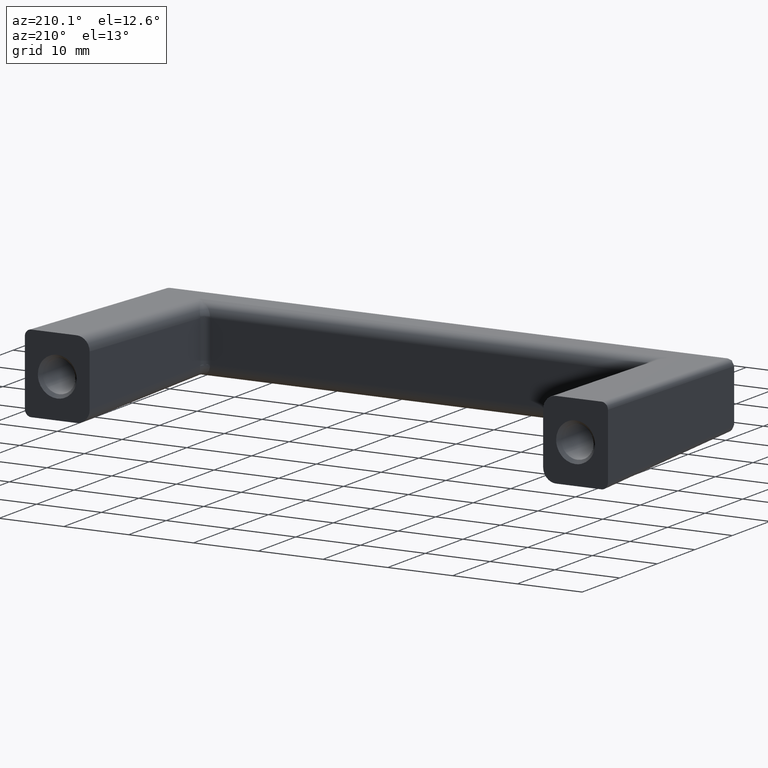
[diagram: clean part render]
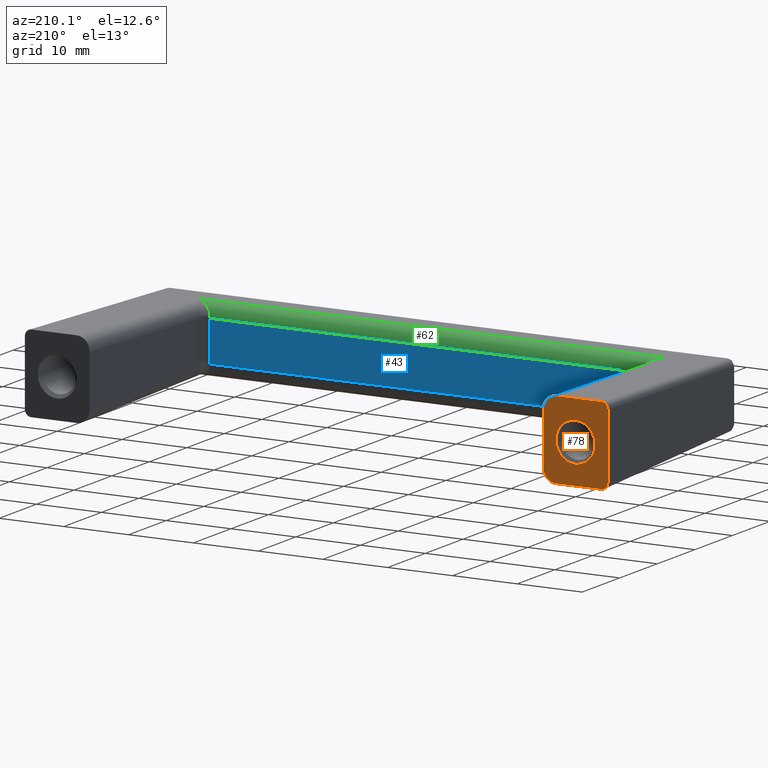
[diagram: same view with three faces highlighted in distinct colors, each labeled with its STEP entity id]
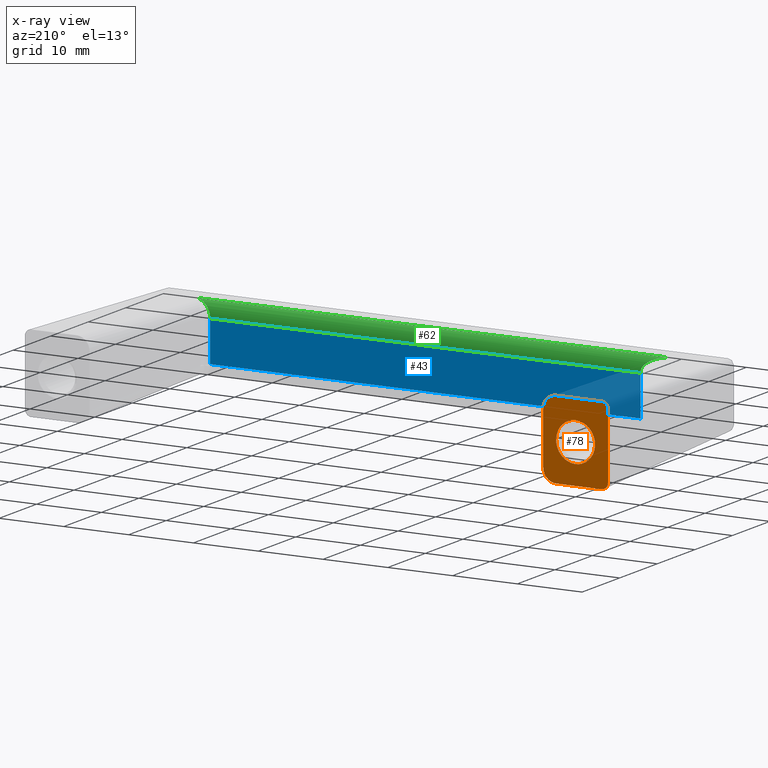
[diagram: x-ray of the same camera — body ghosted, the three highlighted faces saturated]
A machine part, auxiliary view with three faces highlighted in distinct colors.
The next image is the same camera in x-ray (body ghosted, the three faces saturated) — at least one of them is partly hidden behind the body in this view.
Their STEP definitions:

[orange] entity #78 — the highlighted planar face has unit normal (0, -1, 0).
#78=ADVANCED_FACE('',(#470,#471),#469,.F.);
#469=PLANE('',#964);
#470=FACE_OUTER_BOUND('',#965,.T.);
#471=FACE_BOUND('',#966,.T.);
#961=CARTESIAN_POINT('',(-4.60004150808E+001,0.00000000000E+000,-7.20014746024E+000));
#962=DIRECTION('',(0.00000000000E+000,-1.00000000000E+000,0.00000000000E+000));
#963=DIRECTION('',(1.00000000000E+000,0.00000000000E+000,0.00000000000E+000));
#964=AXIS2_PLACEMENT_3D('',#961,#962,#963);
#965=EDGE_LOOP('',(#1214,#1215,#1216,#1217,#1218,#1219,#1220,#1221));
#966=EDGE_LOOP('',(#1222,#1223,#1224,#1225,#1226,#1227,#1228,#1229));
#1214=ORIENTED_EDGE('',*,*,#1438,.F.);
#1215=ORIENTED_EDGE('',*,*,#1416,.T.);
#1216=ORIENTED_EDGE('',*,*,#1439,.T.);
#1217=ORIENTED_EDGE('',*,*,#1411,.T.);
#1218=ORIENTED_EDGE('',*,*,#1437,.T.);
#1219=ORIENTED_EDGE('',*,*,#1429,.T.);
#1220=ORIENTED_EDGE('',*,*,#1382,.F.);
#1221=ORIENTED_EDGE('',*,*,#1419,.T.);
#1222=ORIENTED_EDGE('',*,*,#1440,.T.);
#1223=ORIENTED_EDGE('',*,*,#1441,.T.);
#1224=ORIENTED_EDGE('',*,*,#1442,.T.);
#1225=ORIENTED_EDGE('',*,*,#1443,.T.);
#1226=ORIENTED_EDGE('',*,*,#1444,.T.);
#1227=ORIENTED_EDGE('',*,*,#1445,.T.);
#1228=ORIENTED_EDGE('',*,*,#1446,.T.);
#1229=ORIENTED_EDGE('',*,*,#1447,.T.);
#1382=EDGE_CURVE('',#1822,#1829,#1830,.T.);
#1411=EDGE_CURVE('',#2004,#2011,#2018,.T.);
#1416=EDGE_CURVE('',#2036,#2043,#2050,.T.);
#1419=EDGE_CURVE('',#1822,#2063,#2070,.T.);
#1429=EDGE_CURVE('',#2132,#1829,#2133,.T.);
#1437=EDGE_CURVE('',#2011,#2132,#2182,.T.);
#1438=EDGE_CURVE('',#2036,#2063,#2188,.T.);
#1439=EDGE_CURVE('',#2043,#2004,#2194,.T.);
#1440=EDGE_CURVE('',#2200,#2201,#2202,.T.);
#1441=EDGE_CURVE('',#2201,#2208,#2209,.T.);
#1442=EDGE_CURVE('',#2208,#2215,#2216,.T.);
#1443=EDGE_CURVE('',#2215,#2222,#2223,.T.);
#1444=EDGE_CURVE('',#2222,#2229,#2230,.T.);
#1445=EDGE_CURVE('',#2229,#2236,#2237,.T.);
#1446=EDGE_CURVE('',#2236,#2243,#2244,.T.);
#1447=EDGE_CURVE('',#2243,#2200,#2250,.T.);
#1822=VERTEX_POINT('',#2769);
#1829=VERTEX_POINT('',#2773);
#1830=LINE('',#2774,#2775);
#2004=VERTEX_POINT('',#3003);
#2011=VERTEX_POINT('',#3007);
#2018=(BOUNDED_CURVE() B_SPLINE_CURVE(3,(#3011,#3012,#3013,#3014,#3015,#3016,#3017,#3018,#3019),.UNSPECIFIED.,.F.,.F.) B_SPLINE_CURVE_WITH_KNOTS((4,1,1,1,1,1,4),(1.39798509000E-007,6.38861703249E-001,1.32689146219E+000,1.71998163015E+000,2.11314884337E+000,2.50630668852E+000,3.14516897243E+000),.UNSPECIFIED.) CURVE() GEOMETRIC_REPRESENTATION_ITEM() RATIONAL_B_SPLINE_CURVE((1.00000000000E+000,1.00000000000E+000,1.00000000000E+000,1.00000000000E+000,1.00000000000E+000,1.00000000000E+000,1.00000000000E+000,1.00000000000E+000,1.00000000000E+000)) REPRESENTATION_ITEM('') );
#2036=VERTEX_POINT('',#3026);
#2043=VERTEX_POINT('',#3030);
#2050=(BOUNDED_CURVE() B_SPLINE_CURVE(3,(#3034,#3035,#3036,#3037,#3038,#3039,#3040,#3041,#3042),.UNSPECIFIED.,.F.,.F.) B_SPLINE_CURVE_WITH_KNOTS((4,1,1,1,1,1,4),(1.39802594000E-007,5.40565105711E-001,1.22858372363E+000,1.71998163015E+000,2.11314884337E+000,2.40802275541E+000,3.14516897243E+000),.UNSPECIFIED.) CURVE() GEOMETRIC_REPRESENTATION_ITEM() RATIONAL_B_SPLINE_CURVE((1.00000000000E+000,1.00000000000E+000,1.00000000000E+000,1.00000000000E+000,1.00000000000E+000,1.00000000000E+000,1.00000000000E+000,1.00000000000E+000,1.00000000000E+000)) REPRESENTATION_ITEM('') );
#2063=VERTEX_POINT('',#3052);
#2070=(BOUNDED_CURVE() B_SPLINE_CURVE(3,(#3056,#3057,#3058,#3059,#3060,#3061,#3062),.UNSPECIFIED.,.F.,.F.) B_SPLINE_CURVE_WITH_KNOTS((4,1,1,1,4),(2.47293324000E-007,4.90723671717E-001,8.83262818728E-001,1.22680017350E+000,1.57029857239E+000),.UNSPECIFIED.) CURVE() GEOMETRIC_REPRESENTATION_ITEM() RATIONAL_B_SPLINE_CURVE((1.00000000000E+000,1.00000000000E+000,1.00000000000E+000,1.00000000000E+000,1.00000000000E+000,1.00000000000E+000,1.00000000000E+000)) REPRESENTATION_ITEM('') );
#2132=VERTEX_POINT('',#3131);
#2133=(BOUNDED_CURVE() B_SPLINE_CURVE(3,(#3132,#3133,#3134,#3135,#3136,#3137,#3138,#3139),.UNSPECIFIED.,.F.,.F.) B_SPLINE_CURVE_WITH_KNOTS((4,1,1,1,1,4),(2.47303114000E-007,3.68037627212E-001,6.13413120796E-001,9.07827256662E-001,1.27587283427E+000,1.57029857239E+000),.UNSPECIFIED.) CURVE() GEOMETRIC_REPRESENTATION_ITEM() RATIONAL_B_SPLINE_CURVE((1.00000000000E+000,1.00000000000E+000,1.00000000000E+000,1.00000000000E+000,1.00000000000E+000,1.00000000000E+000,1.00000000000E+000,1.00000000000E+000)) REPRESENTATION_ITEM('') );
#2182=LINE('',#3179,#3180);
#2188=LINE('',#3182,#3183);
#2194=LINE('',#3185,#3186);
#2200=VERTEX_POINT('',#3188);
#2201=VERTEX_POINT('',#3189);
#2202=(BOUNDED_CURVE() B_SPLINE_CURVE(3,(#3190,#3191,#3192,#3193,#3194,#3195),.UNSPECIFIED.,.F.,.F.) B_SPLINE_CURVE_WITH_KNOTS((4,1,1,4),(1.27602995000E-007,1.06765595270E+000,1.69354284687E+000,2.33002161547E+000),.UNSPECIFIED.) CURVE() GEOMETRIC_REPRESENTATION_ITEM() RATIONAL_B_SPLINE_CURVE((1.00000000000E+000,1.00000000000E+000,1.00000000000E+000,1.00000000000E+000,1.00000000000E+000,1.00000000000E+000)) REPRESENTATION_ITEM('') );
#2208=VERTEX_POINT('',#3196);
#2209=(BOUNDED_CURVE() B_SPLINE_CURVE(3,(#3197,#3198,#3199,#3200,#3201,#3202,#3203),.UNSPECIFIED.,.F.,.F.) B_SPLINE_CURVE_WITH_KNOTS((4,1,1,1,4),(2.33002161547E+000,2.50345857142E+000,3.20296741248E+000,3.71839367448E+000,4.71241788220E+000),.UNSPECIFIED.) CURVE() GEOMETRIC_REPRESENTATION_ITEM() RATIONAL_B_SPLINE_CURVE((1.00000000000E+000,1.00000000000E+000,1.00000000000E+000,1.00000000000E+000,1.00000000000E+000,1.00000000000E+000,1.00000000000E+000)) REPRESENTATION_ITEM('') );
#2215=VERTEX_POINT('',#3204);
#2216=(BOUNDED_CURVE() B_SPLINE_CURVE(3,(#3205,#3206,#3207,#3208,#3209,#3210),.UNSPECIFIED.,.F.,.F.) B_SPLINE_CURVE_WITH_KNOTS((4,1,1,4),(3.23802630000E-008,8.73761176582E-001,1.45626753185E+000,2.33002867602E+000),.UNSPECIFIED.) CURVE() GEOMETRIC_REPRESENTATION_ITEM() RATIONAL_B_SPLINE_CURVE((1.00000000000E+000,1.00000000000E+000,1.00000000000E+000,1.00000000000E+000,1.00000000000E+000,1.00000000000E+000)) REPRESENTATION_ITEM('') );
#2222=VERTEX_POINT('',#3211);
#2223=(BOUNDED_CURVE() B_SPLINE_CURVE(3,(#3212,#3213,#3214,#3215,#3216,#3217),.UNSPECIFIED.,.F.,.F.) B_SPLINE_CURVE_WITH_KNOTS((4,1,1,4),(3.21135590000E-008,7.44501780957E-001,1.63788896887E+000,2.38239071777E+000),.UNSPECIFIED.) CURVE() GEOMETRIC_REPRESENTATION_ITEM() RATIONAL_B_SPLINE_CURVE((1.00000000000E+000,1.00000000000E+000,1.00000000000E+000,1.00000000000E+000,1.00000000000E+000,1.00000000000E+000)) REPRESENTATION_ITEM('') );
#2229=VERTEX_POINT('',#3218);
#2230=(BOUNDED_CURVE() B_SPLINE_CURVE(3,(#3219,#3220,#3221,#3222,#3223,#3224),.UNSPECIFIED.,.F.,.F.) B_SPLINE_CURVE_WITH_KNOTS((4,1,1,4),(1.27559697000E-007,1.14128846816E+000,1.84080893188E+000,2.32712947337E+000),.UNSPECIFIED.) CURVE() GEOMETRIC_REPRESENTATION_ITEM() RATIONAL_B_SPLINE_CURVE((1.00000000000E+000,1.00000000000E+000,1.00000000000E+000,1.00000000000E+000,1.00000000000E+000,1.00000000000E+000)) REPRESENTATION_ITEM('') );
#2236=VERTEX_POINT('',#3225);
#2237=(BOUNDED_CURVE() B_SPLINE_CURVE(3,(#3226,#3227,#3228,#3229,#3230,#3231,#3232),.UNSPECIFIED.,.F.,.F.) B_SPLINE_CURVE_WITH_KNOTS((4,1,1,1,4),(2.32712947337E+000,2.87160985378E+000,3.49749757814E+000,3.86565947318E+000,4.71241788220E+000),.UNSPECIFIED.) CURVE() GEOMETRIC_REPRESENTATION_ITEM() RATIONAL_B_SPLINE_CURVE((1.00000000000E+000,1.00000000000E+000,1.00000000000E+000,1.00000000000E+000,1.00000000000E+000,1.00000000000E+000,1.00000000000E+000)) REPRESENTATION_ITEM('') );
#2243=VERTEX_POINT('',#3233);
#2244=(BOUNDED_CURVE() B_SPLINE_CURVE(3,(#3234,#3235,#3236,#3237,#3238,#3239),.UNSPECIFIED.,.F.,.F.) B_SPLINE_CURVE_WITH_KNOTS((4,1,1,4),(3.23769470000E-008,8.73761176580E-001,1.60189459832E+000,2.33002867602E+000),.UNSPECIFIED.) CURVE() GEOMETRIC_REPRESENTATION_ITEM() RATIONAL_B_SPLINE_CURVE((1.00000000000E+000,1.00000000000E+000,1.00000000000E+000,1.00000000000E+000,1.00000000000E+000,1.00000000000E+000)) REPRESENTATION_ITEM('') );
#2250=(BOUNDED_CURVE() B_SPLINE_CURVE(3,(#3240,#3241,#3242,#3243,#3244,#3245),.UNSPECIFIED.,.F.,.F.) B_SPLINE_CURVE_WITH_KNOTS((4,1,1,4),(3.21086280000E-008,1.15398938204E+000,1.82401813938E+000,2.38239071777E+000),.UNSPECIFIED.) CURVE() GEOMETRIC_REPRESENTATION_ITEM() RATIONAL_B_SPLINE_CURVE((1.00000000000E+000,1.00000000000E+000,1.00000000000E+000,1.00000000000E+000,1.00000000000E+000,1.00000000000E+000)) REPRESENTATION_ITEM('') );
#2769=CARTESIAN_POINT('',(-4.50000000000E+001,0.00000000000E+000,5.00038557935E+000));
#2773=CARTESIAN_POINT('',(-4.50000000000E+001,0.00000000000E+000,-5.00038557935E+000));
#2774=CARTESIAN_POINT('',(-4.50000000000E+001,0.00000000000E+000,5.00038557935E+000));
#2775=VECTOR('',#2776,1.00007711587E+001);
#2776=DIRECTION('',(0.00000000000E+000,0.00000000000E+000,-1.00000000000E+000));
#3003=CARTESIAN_POINT('',(-3.50000000000E+001,0.00000000000E+000,-3.99768603531E+000));
#3007=CARTESIAN_POINT('',(-3.70023138582E+001,0.00000000000E+000,-6.00000000000E+000));
#3011=CARTESIAN_POINT('',(-3.50000000000E+001,0.00000000000E+000,-3.99768603531E+000));
#3012=CARTESIAN_POINT('',(-3.49999453225E+001,0.00000000000E+000,-4.21063952778E+000));
#3013=CARTESIAN_POINT('',(-3.50712586351E+001,0.00000000000E+000,-4.65288134089E+000));
#3014=CARTESIAN_POINT('',(-3.53454818952E+001,0.00000000000E+000,-5.16598487893E+000));
#3015=CARTESIAN_POINT('',(-3.56861335117E+001,0.00000000000E+000,-5.52351057578E+000));
#3016=CARTESIAN_POINT('',(-3.60090686699E+001,0.00000000000E+000,-5.75099997288E+000));
#3017=CARTESIAN_POINT('',(-3.64454429577E+001,0.00000000000E+000,-5.94449400846E+000));
#3018=CARTESIAN_POINT('',(-3.67893472131E+001,0.00000000000E+000,-6.00009192364E+000));
#3019=CARTESIAN_POINT('',(-3.70023138582E+001,0.00000000000E+000,-6.00000000000E+000));
#3026=CARTESIAN_POINT('',(-3.70023138582E+001,0.00000000000E+000,6.00000000000E+000));
#3030=CARTESIAN_POINT('',(-3.50000000000E+001,0.00000000000E+000,3.99768603531E+000));
#3034=CARTESIAN_POINT('',(-3.70023138582E+001,0.00000000000E+000,6.00000000000E+000));
#3035=CARTESIAN_POINT('',(-3.68221310467E+001,0.00000000000E+000,6.00001881854E+000));
#3036=CARTESIAN_POINT('',(-3.64126049695E+001,0.00000000000E+000,5.94434512211E+000));
#3037=CARTESIAN_POINT('',(-3.58866765251E+001,0.00000000000E+000,5.69564026412E+000));
#3038=CARTESIAN_POINT('',(-3.54954237041E+001,0.00000000000E+000,5.34080622467E+000));
#3039=CARTESIAN_POINT('',(-3.52679742016E+001,0.00000000000E+000,5.01783691086E+000));
#3040=CARTESIAN_POINT('',(-3.50642211179E+001,0.00000000000E+000,4.58725643125E+000));
#3041=CARTESIAN_POINT('',(-3.49998075409E+001,0.00000000000E+000,4.24343818027E+000));
#3042=CARTESIAN_POINT('',(-3.50000000000E+001,0.00000000000E+000,3.99768603531E+000));
#3052=CARTESIAN_POINT('',(-4.40003855793E+001,0.00000000000E+000,6.00000000000E+000));
#3056=CARTESIAN_POINT('',(-4.50000000000E+001,0.00000000000E+000,5.00038557935E+000));
#3057=CARTESIAN_POINT('',(-4.50003598499E+001,0.00000000000E+000,5.16401172277E+000));
#3058=CARTESIAN_POINT('',(-4.49261431880E+001,0.00000000000E+000,5.45812200061E+000));
#3059=CARTESIAN_POINT('',(-4.46616819259E+001,0.00000000000E+000,5.78037953526E+000));
#3060=CARTESIAN_POINT('',(-4.43438534031E+001,0.00000000000E+000,5.96028302809E+000));
#3061=CARTESIAN_POINT('',(-4.41148894687E+001,0.00000000000E+000,6.00008519773E+000));
#3062=CARTESIAN_POINT('',(-4.40003855793E+001,0.00000000000E+000,6.00000000000E+000));
#3131=CARTESIAN_POINT('',(-4.40003855793E+001,0.00000000000E+000,-6.00000000000E+000));
#3132=CARTESIAN_POINT('',(-4.40003855793E+001,0.00000000000E+000,-6.00000000000E+000));
#3133=CARTESIAN_POINT('',(-4.41230803941E+001,0.00000000000E+000,-6.00012630951E+000));
#3134=CARTESIAN_POINT('',(-4.43274571729E+001,0.00000000000E+000,-5.96190222152E+000));
#3135=CARTESIAN_POINT('',(-4.45963698147E+001,0.00000000000E+000,-5.81820041492E+000));
#3136=CARTESIAN_POINT('',(-4.48179750117E+001,0.00000000000E+000,-5.60729821031E+000));
#3137=CARTESIAN_POINT('',(-4.49673491376E+001,0.00000000000E+000,-5.31936991726E+000));
#3138=CARTESIAN_POINT('',(-4.50000358952E+001,0.00000000000E+000,-5.09851958557E+000));
#3139=CARTESIAN_POINT('',(-4.50000000000E+001,0.00000000000E+000,-5.00038557935E+000));
#3179=CARTESIAN_POINT('',(-3.70023138582E+001,0.00000000000E+000,-6.00000000000E+000));
#3180=VECTOR('',#3181,6.99807172112E+000);
#3181=DIRECTION('',(-1.00000000000E+000,0.00000000000E+000,0.00000000000E+000));
#3182=CARTESIAN_POINT('',(-3.70023138582E+001,0.00000000000E+000,6.00000000000E+000));
#3183=VECTOR('',#3184,6.99807172112E+000);
#3184=DIRECTION('',(-1.00000000000E+000,0.00000000000E+000,0.00000000000E+000));
#3185=CARTESIAN_POINT('',(-3.50000000000E+001,0.00000000000E+000,3.99768603531E+000));
#3186=VECTOR('',#3187,7.99537207061E+000);
#3187=DIRECTION('',(0.00000000000E+000,0.00000000000E+000,-1.00000000000E+000));
#3188=CARTESIAN_POINT('',(-4.00000011824E+001,0.00000000000E+000,3.00000000000E+000));
#3189=CARTESIAN_POINT('',(-4.21027204688E+001,0.00000000000E+000,2.13974389280E+000));
#3190=CARTESIAN_POINT('',(-4.00000011824E+001,0.00000000000E+000,3.00000000000E+000));
#3191=CARTESIAN_POINT('',(-4.03559355543E+001,0.00000000000E+000,3.00029459230E+000));
#3192=CARTESIAN_POINT('',(-4.09202091950E+001,0.00000000000E+000,2.89829063339E+000));
#3193=CARTESIAN_POINT('',(-4.16199009650E+001,0.00000000000E+000,2.55146257718E+000));
#3194=CARTESIAN_POINT('',(-4.19513704501E+001,0.00000000000E+000,2.28841360782E+000));
#3195=CARTESIAN_POINT('',(-4.21027204688E+001,0.00000000000E+000,2.13974389280E+000));
#3196=CARTESIAN_POINT('',(-4.30000000000E+001,0.00000000000E+000,0.00000000000E+000));
#3197=CARTESIAN_POINT('',(-4.21027204688E+001,0.00000000000E+000,2.13974389280E+000));
#3198=CARTESIAN_POINT('',(-4.21439625145E+001,0.00000000000E+000,2.09923221498E+000));
#3199=CARTESIAN_POINT('',(-4.23456469186E+001,0.00000000000E+000,1.88933286027E+000));
#3200=CARTESIAN_POINT('',(-4.26162255719E+001,0.00000000000E+000,1.51000209613E+000));
#3201=CARTESIAN_POINT('',(-4.29157342880E+001,0.00000000000E+000,8.34361050661E-001));
#3202=CARTESIAN_POINT('',(-4.30002367926E+001,0.00000000000E+000,3.31376497228E-001));
#3203=CARTESIAN_POINT('',(-4.30000000000E+001,0.00000000000E+000,0.00000000000E+000));
#3204=CARTESIAN_POINT('',(-4.21397510312E+001,-1.47780752000E-007,-2.10272748216E+000));
#3205=CARTESIAN_POINT('',(-4.30000000000E+001,0.00000000000E+000,0.00000000000E+000));
#3206=CARTESIAN_POINT('',(-4.30001346708E+001,-2.04704870000E-008,-2.91268340882E-001));
#3207=CARTESIAN_POINT('',(-4.29287165981E+001,-5.45802470000E-008,-7.76605778347E-001));
#3208=CARTESIAN_POINT('',(-4.26332423865E+001,-1.05340267000E-007,-1.49885469213E+000));
#3209=CARTESIAN_POINT('',(-4.23439927097E+001,-1.33186325000E-007,-1.89506780202E+000));
#3210=CARTESIAN_POINT('',(-4.21397510312E+001,-1.47780752000E-007,-2.10272748216E+000));
#3211=CARTESIAN_POINT('',(-3.99999988176E+001,0.00000000000E+000,-3.00000000000E+000));
#3212=CARTESIAN_POINT('',(-4.21397510312E+001,-1.47780752000E-007,-2.10272748216E+000));
#3213=CARTESIAN_POINT('',(-4.19658418485E+001,-1.35769818000E-007,-2.27976069732E+000));
#3214=CARTESIAN_POINT('',(-4.15345962742E+001,-1.05986095000E-007,-2.62144788321E+000));
#3215=CARTESIAN_POINT('',(-4.07941447216E+001,-5.48472360000E-008,-2.93197172902E+000));
#3216=CARTESIAN_POINT('',(-4.02481597909E+001,-1.71390970000E-008,-3.00004021948E+000));
#3217=CARTESIAN_POINT('',(-3.99999988176E+001,0.00000000000E+000,-3.00000000000E+000));
#3218=CARTESIAN_POINT('',(-3.78993379216E+001,0.00000000000E+000,-2.14178294649E+000));
#3219=CARTESIAN_POINT('',(-3.99999988176E+001,0.00000000000E+000,-3.00000000000E+000));
#3220=CARTESIAN_POINT('',(-3.96195132165E+001,0.00000000000E+000,-3.00035792640E+000));
#3221=CARTESIAN_POINT('',(-3.90062026719E+001,0.00000000000E+000,-2.88166424627E+000));
#3222=CARTESIAN_POINT('',(-3.83220099857E+001,0.00000000000E+000,-2.51039336970E+000));
#3223=CARTESIAN_POINT('',(-3.80170437728E+001,0.00000000000E+000,-2.25694371502E+000));
#3224=CARTESIAN_POINT('',(-3.79011696726E+001,0.00000000000E+000,-2.14357963211E+000));
#3225=CARTESIAN_POINT('',(-3.70000000000E+001,0.00000000000E+000,0.00000000000E+000));
#3226=CARTESIAN_POINT('',(-3.79011696726E+001,0.00000000000E+000,-2.14357963211E+000));
#3227=CARTESIAN_POINT('',(-3.77714380064E+001,0.00000000000E+000,-2.01665816012E+000));
#3228=CARTESIAN_POINT('',(-3.75173511897E+001,0.00000000000E+000,-1.71844991915E+000));
#3229=CARTESIAN_POINT('',(-3.72647084161E+001,0.00000000000E+000,-1.26599560108E+000));
#3230=CARTESIAN_POINT('',(-3.70575898918E+001,0.00000000000E+000,-6.87166926968E-001));
#3231=CARTESIAN_POINT('',(-3.69998919124E+001,0.00000000000E+000,-2.82267307084E-001));
#3232=CARTESIAN_POINT('',(-3.70000000000E+001,0.00000000000E+000,0.00000000000E+000));
#3233=CARTESIAN_POINT('',(-3.78602489688E+001,-1.47780752000E-007,2.10272748216E+000));
#3234=CARTESIAN_POINT('',(-3.70000000000E+001,0.00000000000E+000,0.00000000000E+000));
#3235=CARTESIAN_POINT('',(-3.69999051285E+001,-2.04696060000E-008,2.91255816028E-001));
#3236=CARTESIAN_POINT('',(-3.70783432770E+001,-5.79936830000E-008,8.25174517871E-001));
#3237=CARTESIAN_POINT('',(-3.73921527187E+001,-1.08364951000E-007,1.54189200360E+000));
#3238=CARTESIAN_POINT('',(-3.76900887981E+001,-1.35616843000E-007,1.92965090640E+000));
#3239=CARTESIAN_POINT('',(-3.78602489688E+001,-1.47780752000E-007,2.10272748216E+000));
#3240=CARTESIAN_POINT('',(-3.78602489688E+001,-1.47780752000E-007,2.10272748216E+000));
#3241=CARTESIAN_POINT('',(-3.81296282192E+001,-1.29176234000E-007,2.37741131976E+000));
#3242=CARTESIAN_POINT('',(-3.86404423368E+001,-9.38971560000E-008,2.72742938457E+000));
#3243=CARTESIAN_POINT('',(-3.94044199964E+001,-4.11334770000E-008,2.96179042070E+000));
#3244=CARTESIAN_POINT('',(-3.98138792534E+001,-1.28544060000E-008,3.00001171648E+000));
#3245=CARTESIAN_POINT('',(-4.00000011824E+001,0.00000000000E+000,3.00000000000E+000));

[blue] entity #43 — the highlighted planar face has unit normal (0, -1, 0).
#43=ADVANCED_FACE('',(#120),#119,.F.);
#119=PLANE('',#589);
#120=FACE_OUTER_BOUND('',#590,.T.);
#586=CARTESIAN_POINT('',(-3.98662282246E+001,-2.90000000000E+001,-3.76574091928E+000));
#587=DIRECTION('',(0.00000000000E+000,-1.00000000000E+000,0.00000000000E+000));
#588=DIRECTION('',(1.00000000000E+000,0.00000000000E+000,0.00000000000E+000));
#589=AXIS2_PLACEMENT_3D('',#586,#587,#588);
#590=EDGE_LOOP('',(#1068,#1069,#1070,#1071));
#1068=ORIENTED_EDGE('',*,*,#1364,.T.);
#1069=ORIENTED_EDGE('',*,*,#1365,.T.);
#1070=ORIENTED_EDGE('',*,*,#1366,.T.);
#1071=ORIENTED_EDGE('',*,*,#1367,.T.);
#1364=EDGE_CURVE('',#1704,#1705,#1706,.T.);
#1365=EDGE_CURVE('',#1705,#1712,#1713,.T.);
#1366=EDGE_CURVE('',#1712,#1719,#1720,.T.);
#1367=EDGE_CURVE('',#1719,#1704,#1726,.T.);
#1704=VERTEX_POINT('',#2702);
#1705=VERTEX_POINT('',#2703);
#1706=LINE('',#2704,#2705);
#1712=VERTEX_POINT('',#2707);
#1713=LINE('',#2708,#2709);
#1719=VERTEX_POINT('',#2711);
#1720=LINE('',#2712,#2713);
#1726=LINE('',#2715,#2716);
#2702=CARTESIAN_POINT('',(3.32214901872E+001,-2.90000000000E+001,-3.13811743274E+000));
#2703=CARTESIAN_POINT('',(-3.32218901872E+001,-2.90000000000E+001,-3.13811743274E+000));
#2704=CARTESIAN_POINT('',(3.32214901872E+001,-2.90000000000E+001,-3.13811743274E+000));
#2705=VECTOR('',#2706,6.64433803744E+001);
#2706=DIRECTION('',(-1.00000000000E+000,0.00000000000E+000,0.00000000000E+000));
#2707=CARTESIAN_POINT('',(-3.32218901872E+001,-2.90000000000E+001,3.13811743274E+000));
#2708=CARTESIAN_POINT('',(-3.32218901872E+001,-2.90000000000E+001,-3.13811743274E+000));
#2709=VECTOR('',#2710,6.27623486547E+000);
#2710=DIRECTION('',(0.00000000000E+000,0.00000000000E+000,1.00000000000E+000));
#2711=CARTESIAN_POINT('',(3.32214901872E+001,-2.90000000000E+001,3.13811743274E+000));
#2712=CARTESIAN_POINT('',(-3.32218901872E+001,-2.90000000000E+001,3.13811743274E+000));
#2713=VECTOR('',#2714,6.64433803744E+001);
#2714=DIRECTION('',(1.00000000000E+000,0.00000000000E+000,0.00000000000E+000));
#2715=CARTESIAN_POINT('',(3.32214901872E+001,-2.90000000000E+001,3.13811743274E+000));
#2716=VECTOR('',#2717,6.27623486547E+000);
#2717=DIRECTION('',(0.00000000000E+000,0.00000000000E+000,-1.00000000000E+000));

[green] entity #62 — the highlighted cylindrical surface (edge-blend (fillet) strip) has radius 2 mm, axis along (1, 0, 0).
#62=ADVANCED_FACE('',(#310),#309,.T.);
#309=CYLINDRICAL_SURFACE('',#836,2.00000000000E+000);
#310=FACE_OUTER_BOUND('',#837,.T.);
#833=CARTESIAN_POINT('',(3.79914700064E+001,-3.10000000000E+001,3.13811743274E+000));
#834=DIRECTION('',(1.00000000000E+000,2.66906389709E-015,6.22353135408E-015));
#835=DIRECTION('',(6.04898076073E-015,6.10485395348E-002,-9.98134798422E-001));
#836=AXIS2_PLACEMENT_3D('',#833,#834,#835);
#837=EDGE_LOOP('',(#1144,#1145,#1146,#1147,#1148,#1149));
#1144=ORIENTED_EDGE('',*,*,#1366,.F.);
#1145=ORIENTED_EDGE('',*,*,#1385,.T.);
#1146=ORIENTED_EDGE('',*,*,#1391,.T.);
#1147=ORIENTED_EDGE('',*,*,#1413,.F.);
#1148=ORIENTED_EDGE('',*,*,#1400,.T.);
#1149=ORIENTED_EDGE('',*,*,#1398,.T.);
#1366=EDGE_CURVE('',#1712,#1719,#1720,.T.);
#1385=EDGE_CURVE('',#1712,#1843,#1850,.T.);
#1391=EDGE_CURVE('',#1843,#1882,#1889,.T.);
#1398=EDGE_CURVE('',#1934,#1719,#1935,.T.);
#1400=EDGE_CURVE('',#1947,#1934,#1948,.T.);
#1413=EDGE_CURVE('',#1947,#1882,#2030,.T.);
#1712=VERTEX_POINT('',#2707);
#1719=VERTEX_POINT('',#2711);
#1720=LINE('',#2712,#2713);
#1843=VERTEX_POINT('',#2781);
#1850=LINE('',#2789,#2790);
#1882=VERTEX_POINT('',#2815);
#1889=(BOUNDED_CURVE() B_SPLINE_CURVE(3,(#2835,#2836,#2837,#2838,#2839,#2840,#2841,#2842,#2843,#2844,#2845,#2846),.UNSPECIFIED.,.F.,.F.) B_SPLINE_CURVE_WITH_KNOTS((4,1,1,1,1,1,1,1,1,4),(6.99678845970E-005,2.77209370903E-001,5.89021045885E-001,8.66208259318E-001,1.14339410206E+000,1.66316951002E+000,2.21749328992E+000,2.77183214667E+000,3.32624986609E+000,4.43497414545E+000),.UNSPECIFIED.) CURVE() GEOMETRIC_REPRESENTATION_ITEM() RATIONAL_B_SPLINE_CURVE((1.00000000000E+000,1.00000000000E+000,1.00000000000E+000,1.00000000000E+000,1.00000000000E+000,1.00000000000E+000,1.00000000000E+000,1.00000000000E+000,1.00000000000E+000,1.00000000000E+000,1.00000000000E+000,1.00000000000E+000)) REPRESENTATION_ITEM('') );
#1934=VERTEX_POINT('',#2901);
#1935=LINE('',#2902,#2903);
#1947=VERTEX_POINT('',#2913);
#1948=(BOUNDED_CURVE() B_SPLINE_CURVE(3,(#2914,#2915,#2916,#2917,#2918,#2919,#2920,#2921,#2922,#2923,#2924,#2925,#2926,#2927,#2928,#2929,#2930,#2931),.UNSPECIFIED.,.F.,.F.) B_SPLINE_CURVE_WITH_KNOTS((4,1,1,1,1,1,1,1,1,1,1,1,1,1,1,4),(-2.36990014234E-004,1.10861640308E+000,1.66299284768E+000,2.35606854687E+000,2.42537319673E+000,2.46002574534E+000,2.49467829394E+000,2.59850945248E+000,2.63315679042E+000,2.66780412836E+000,3.04898344438E+000,3.32622424765E+000,3.60338429719E+000,3.88056669509E+000,4.08850976919E+000,4.43497067528E+000),.UNSPECIFIED.) CURVE() GEOMETRIC_REPRESENTATION_ITEM() RATIONAL_B_SPLINE_CURVE((1.00000000000E+000,1.00000000000E+000,1.00000000000E+000,1.00000000000E+000,1.00000000000E+000,1.00000000000E+000,1.00000000000E+000,1.00000000000E+000,1.00000000000E+000,1.00000000000E+000,1.00000000000E+000,1.00000000000E+000,1.00000000000E+000,1.00000000000E+000,1.00000000000E+000,1.00000000000E+000,1.00000000000E+000,1.00000000000E+000)) REPRESENTATION_ITEM('') );
#2030=LINE('',#3023,#3024);
#2707=CARTESIAN_POINT('',(-3.32218901872E+001,-2.90000000000E+001,3.13811743274E+000));
#2711=CARTESIAN_POINT('',(3.32214901872E+001,-2.90000000000E+001,3.13811743274E+000));
#2712=CARTESIAN_POINT('',(-3.32218901872E+001,-2.90000000000E+001,3.13811743274E+000));
#2713=VECTOR('',#2714,6.64433803744E+001);
#2714=DIRECTION('',(1.00000000000E+000,0.00000000000E+000,0.00000000000E+000));
#2781=CARTESIAN_POINT('',(-3.32218598168E+001,-2.90007289384E+001,3.19211023146E+000));
#2789=CARTESIAN_POINT('',(-3.32218901872E+001,-2.90000000000E+001,3.13811743274E+000));
#2790=VECTOR('',#2791,5.39977276161E-002);
#2791=DIRECTION('',(5.62437360536E-004,-1.34994276339E-002,9.99908720393E-001));
#2815=CARTESIAN_POINT('',(-3.61397196256E+001,-3.10555341345E+001,5.13734627404E+000));
#2835=CARTESIAN_POINT('',(-3.32218598168E+001,-2.90007289384E+001,3.19211023146E+000));
#2836=CARTESIAN_POINT('',(-3.32217069547E+001,-2.90031896586E+001,3.28446957901E+000));
#2837=CARTESIAN_POINT('',(-3.32417022183E+001,-2.90223402524E+001,3.48030525938E+000));
#2838=CARTESIAN_POINT('',(-3.33284240531E+001,-2.90892894606E+001,3.74973692027E+000));
#2839=CARTESIAN_POINT('',(-3.34586741368E+001,-2.91852799219E+001,3.99015317389E+000));
#2840=CARTESIAN_POINT('',(-3.36571401978E+001,-2.93286636611E+001,4.25280711243E+000));
#2841=CARTESIAN_POINT('',(-3.39535941209E+001,-2.95394285567E+001,4.52233949002E+000));
#2842=CARTESIAN_POINT('',(-3.43519442885E+001,-2.98193416470E+001,4.76588475037E+000));
#2843=CARTESIAN_POINT('',(-3.47832429864E+001,-3.01200508927E+001,4.94475282692E+000));
#2844=CARTESIAN_POINT('',(-3.53773865143E+001,-3.05318663079E+001,5.10359708066E+000));
#2845=CARTESIAN_POINT('',(-3.58349438477E+001,-3.08467056300E+001,5.14295005092E+000));
#2846=CARTESIAN_POINT('',(-3.61397196256E+001,-3.10555341345E+001,5.13734627404E+000));
#2901=CARTESIAN_POINT('',(3.32214598168E+001,-2.90007289384E+001,3.19211023146E+000));
#2902=CARTESIAN_POINT('',(3.32214598168E+001,-2.90007289384E+001,3.19211023146E+000));
#2903=VECTOR('',#2904,5.39977276160E-002);
#2904=DIRECTION('',(5.62437359879E-004,1.34994276340E-002,-9.99908720393E-001));
#2913=CARTESIAN_POINT('',(3.61393196256E+001,-3.10555341345E+001,5.13734627404E+000));
#2914=CARTESIAN_POINT('',(3.61393196256E+001,-3.10555341345E+001,5.13734627404E+000));
#2915=CARTESIAN_POINT('',(3.58345395115E+001,-3.08467019018E+001,5.14292287990E+000));
#2916=CARTESIAN_POINT('',(3.53769636191E+001,-3.05318513242E+001,5.10362283565E+000));
#2917=CARTESIAN_POINT('',(3.47456952335E+001,-3.00943025267E+001,4.93480879106E+000));
#2918=CARTESIAN_POINT('',(3.44056126726E+001,-2.98570105817E+001,4.78728126624E+000));
#2919=CARTESIAN_POINT('',(3.42087346162E+001,-2.97188696887E+001,4.67416969126E+000));
#2920=CARTESIAN_POINT('',(3.41748973472E+001,-2.96950962245E+001,4.65360239020E+000));
#2921=CARTESIAN_POINT('',(3.41325822929E+001,-2.96653695865E+001,4.62799607008E+000));
#2922=CARTESIAN_POINT('',(3.40907733627E+001,-2.96359567247E+001,4.60119195660E+000));
#2923=CARTESIAN_POINT('',(3.40495893629E+001,-2.96069351949E+001,4.57304930658E+000));
#2924=CARTESIAN_POINT('',(3.39427580290E+001,-2.95316308874E+001,4.49923968635E+000));
#2925=CARTESIAN_POINT('',(3.37845671156E+001,-2.94196396928E+001,4.37252007023E+000));
#2926=CARTESIAN_POINT('',(3.35914005571E+001,-2.92815475723E+001,4.16954549319E+000));
#2927=CARTESIAN_POINT('',(3.34409233786E+001,-2.91726241456E+001,3.96285096383E+000));
#2928=CARTESIAN_POINT('',(3.33302173839E+001,-2.90907473481E+001,3.74807821363E+000));
#2929=CARTESIAN_POINT('',(3.32450444549E+001,-2.90252199225E+001,3.49159578166E+000));
#2930=CARTESIAN_POINT('',(3.32212076913E+001,-2.90037646720E+001,3.30762039208E+000));
#2931=CARTESIAN_POINT('',(3.32214598168E+001,-2.90007289384E+001,3.19211023146E+000));
#3023=CARTESIAN_POINT('',(3.61393196256E+001,-3.10555341345E+001,5.13734627404E+000));
#3024=VECTOR('',#3025,7.22790392513E+001);
#3025=DIRECTION('',(-1.00000000000E+000,0.00000000000E+000,0.00000000000E+000));